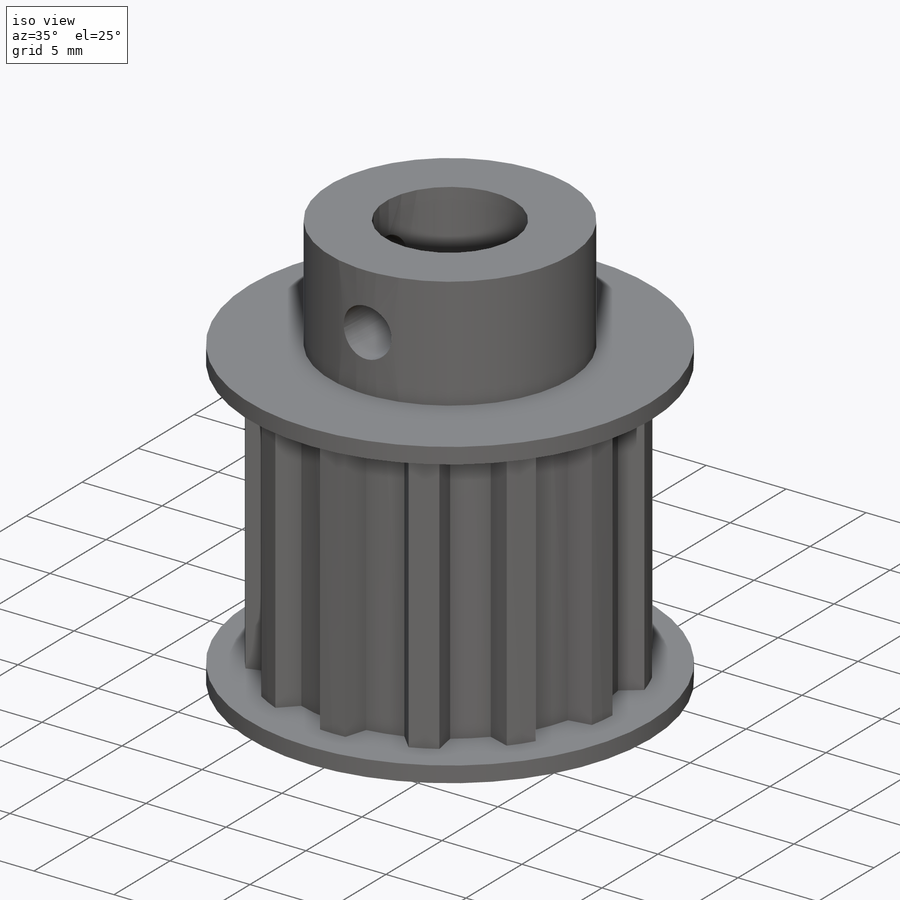
[diagram: iso view]
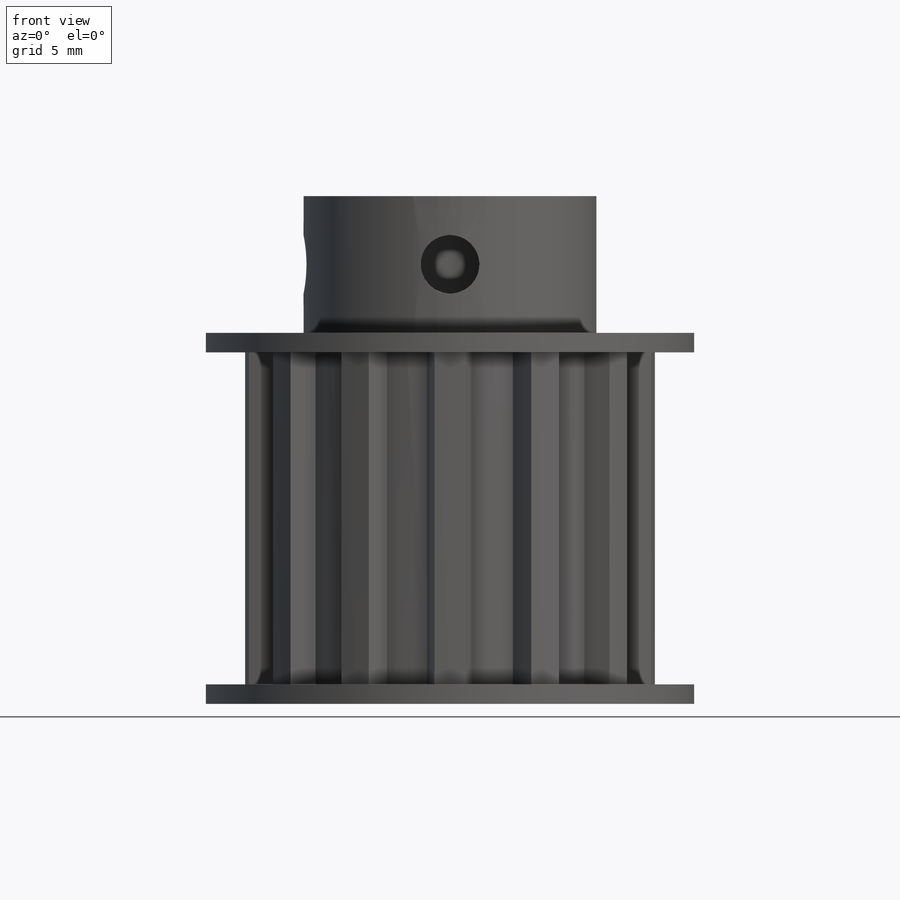
[diagram: front view]
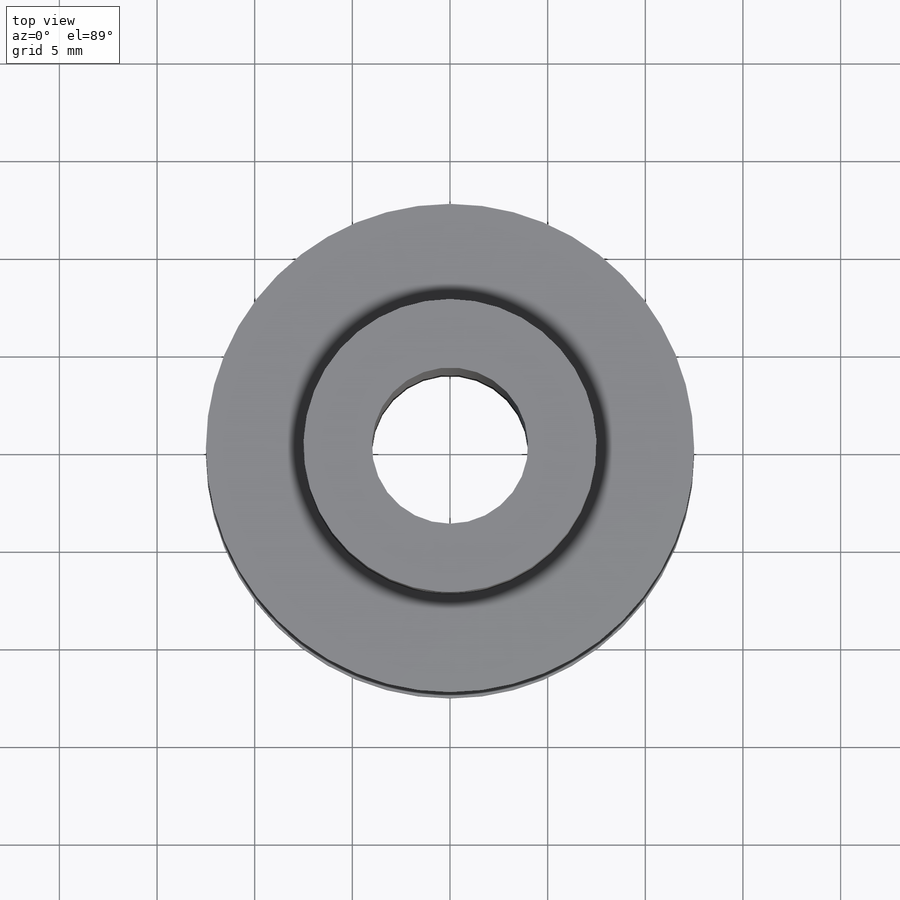
[diagram: top view]
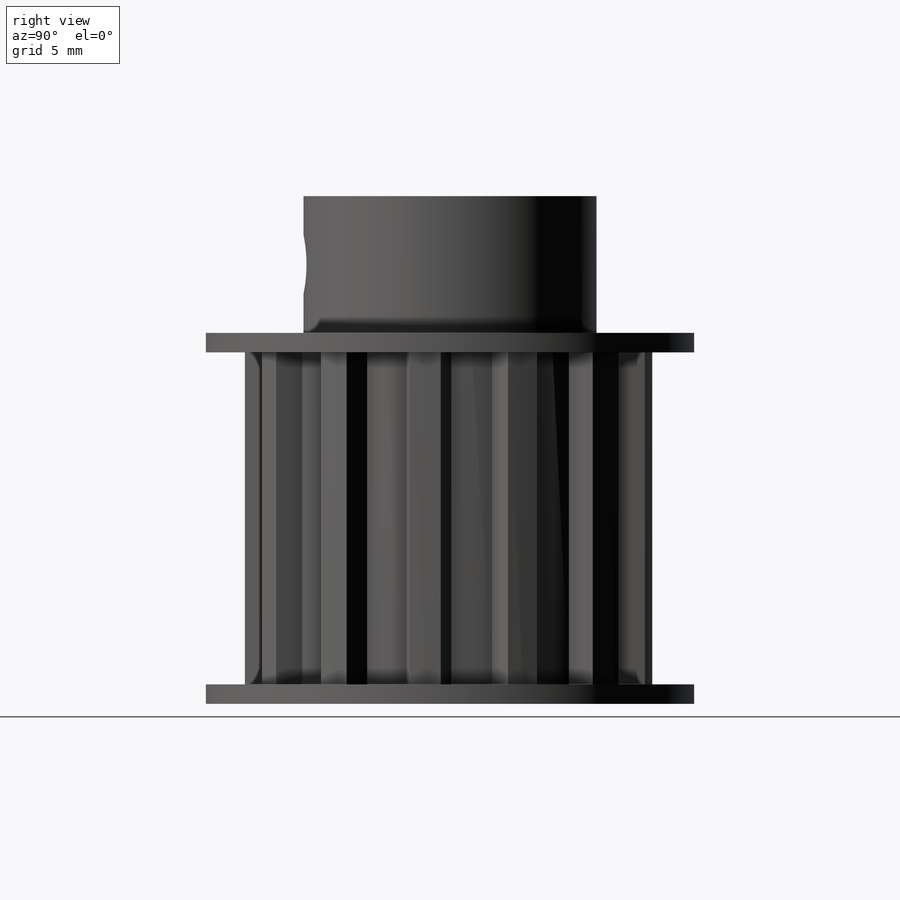
[diagram: right view]
SOLIDWORKS PART (.sldprt)
format: sldprt  version: not decoded by parser v0  size: 515,072 bytes
history: native  units: mm
features: sketch x9, plane x5, extrude x4, cut_extrude x4, material x1, pattern_circular x1 (+9 scaffold rows collapsed)
feature tree (33):
  scaffold x9  (default folders/planes/origin — collapsed)
  material  "Material <sin especificar>"
  plane  "Alzado"
  plane  "Planta"
  plane  "Vista lateral"
  sketch  "Croquis1"  dims[D1=25.0mm]
  extrude  "Saliente-Extruir1"  Depth=1mm
  sketch  "Croquis3"  dims[D1=21.0mm]
  extrude  "Saliente-Extruir2"  Depth=17mm
  sketch  "Croquis5"  dims[D1=21.1mm D2=1.3mm D3=1.05mm D4=0.5mm D5=0.5mm D6=0.0mm]
  cut_extrude  "Cortar-Extruir1"  [1 undecoded]
  pattern_circular  "MatrizC1"  Count=13 Angle=360deg
  sketch  "Croquis6"  dims[D1=25.0mm]
  extrude  "Saliente-Extruir3"  Depth=1mm
  sketch  "Croquis7"  dims[D1=15.0mm]
  extrude  "Saliente-Extruir4"  Depth=7mm
  sketch  "Croquis8"
  plane  "Plano1"
  sketch  "Croquis9"  dims[D1=3.0mm]
  plane  "Plano2"
  sketch  "Croquis10"  dims[D1=3.0mm]
  sketch  "Croquis11"  dims[D1=8.0mm]
  cut_extrude  "Cortar-Extruir2"  Depth=37mm
  cut_extrude  "Cortar-Extruir3"  Depth=7mm
  cut_extrude  "Cortar-Extruir4"  Depth=7mm
decode coverage: 16 of 18 modeling features carry decoded parameters
note: 1 parameter value undecoded
note: suppression state not decoded; provenance and decode notes live in map.json
